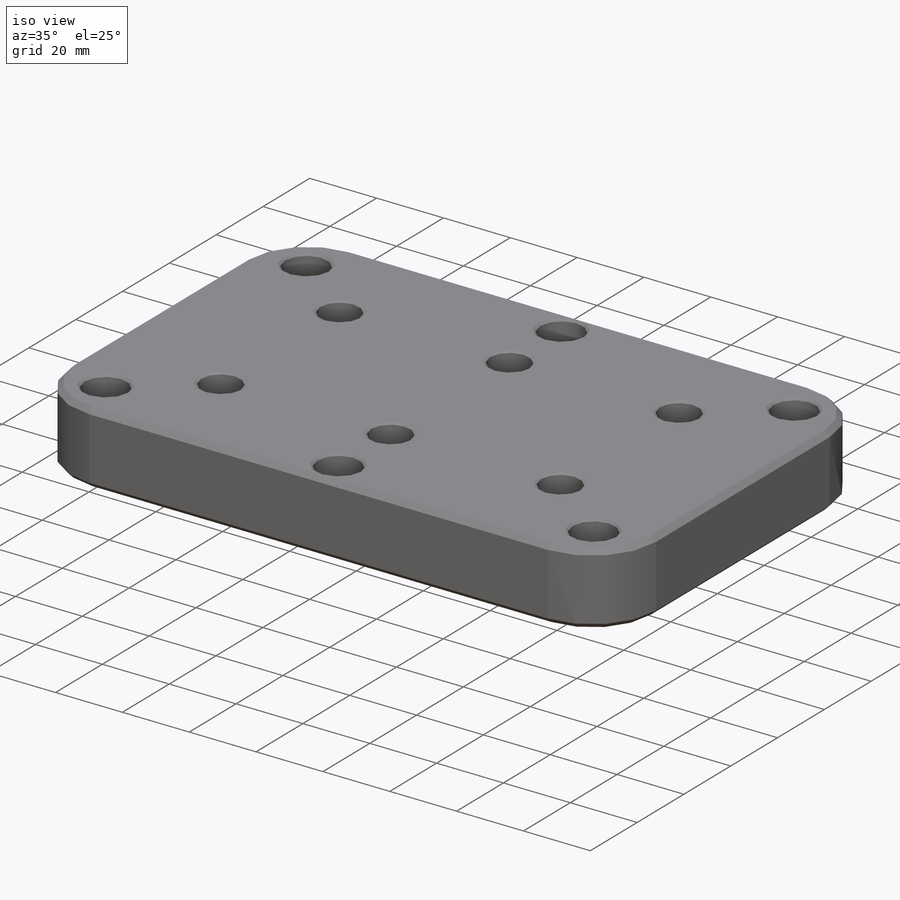
[diagram: iso view]
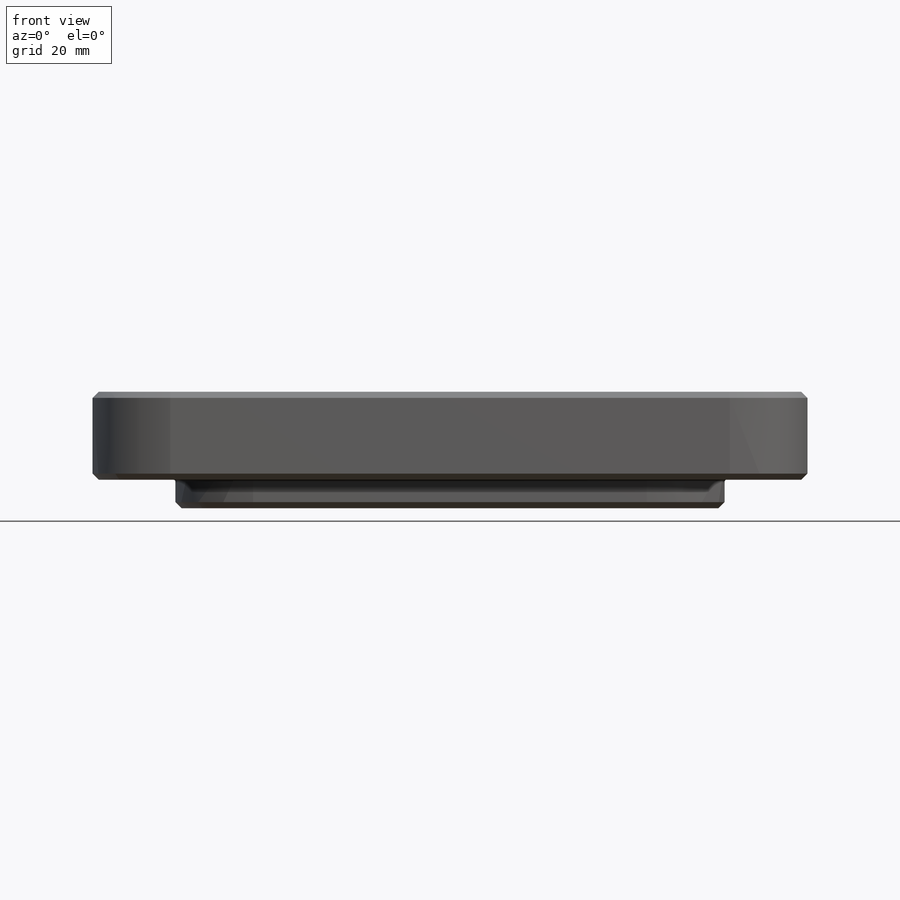
[diagram: front view]
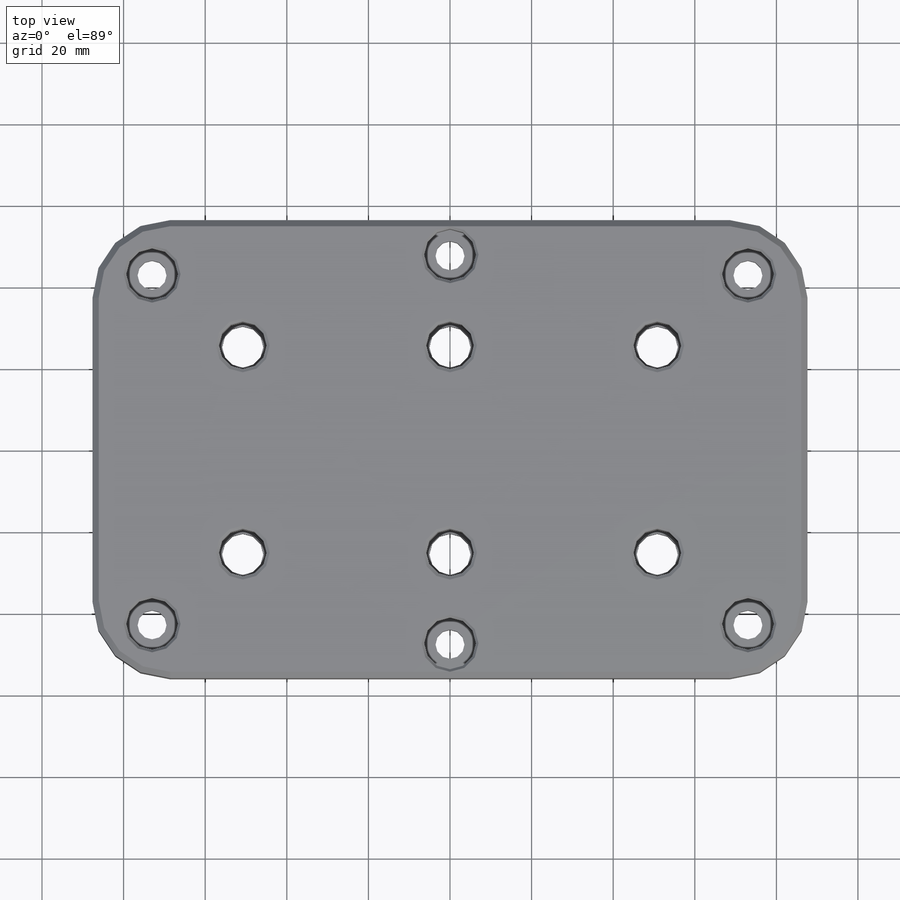
[diagram: top view]
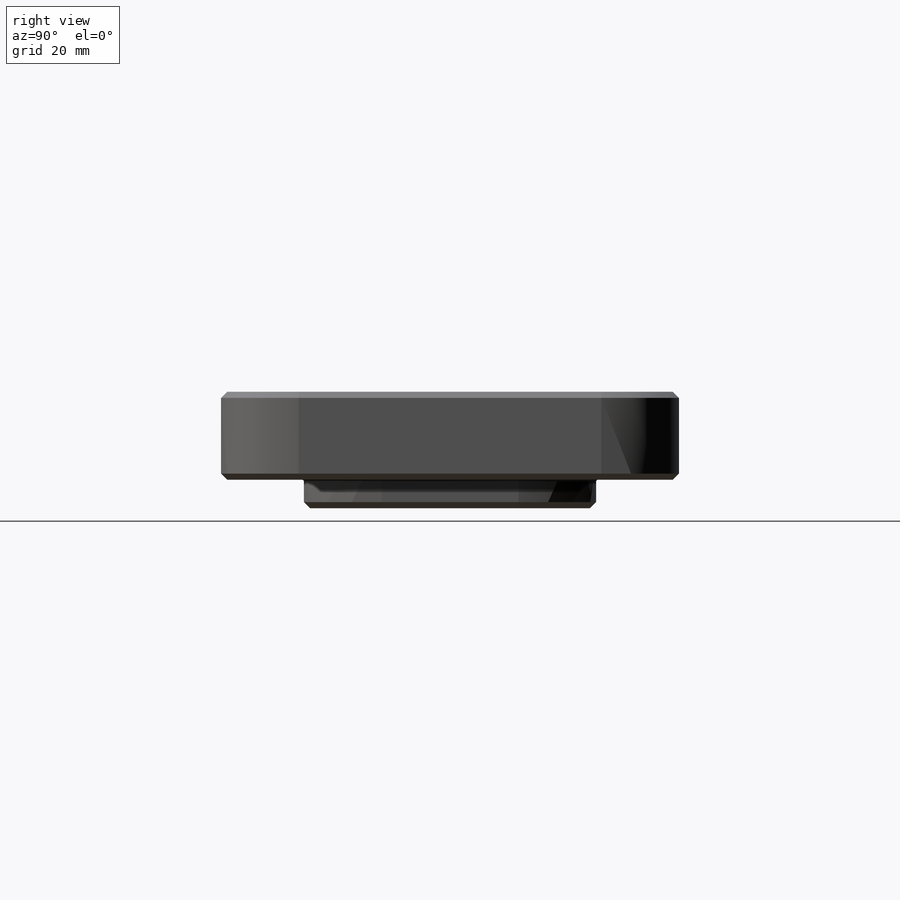
[diagram: right view]
SOLIDWORKS PART (.sldprt)
format: sldprt  version: not decoded by parser v0  size: 374,272 bytes
history: native  units: mm
features: sketch x6, extrude x2, fillet x2, hole x2, material x1, chamfer x1 + 1 further entry (+13 scaffold rows collapsed)
feature tree (28):
  scaffold x13  (default folders/planes/origin — collapsed)
  material  "6061-T6 Al"
  "Origin"  ID=-1
  sketch  "Sketch1"  dims[D1=175.26mm D2=112.268mm]
  extrude  "Extrude1"  Depth=21.59mm
  fillet  "Fillet1"  Radius=19.05mm
  hole  "CBORE for 1/4 Socket Head Cap Screw1"  Diameter=7.14248mm Depth=21.59mm
  sketch  "Sketch3"  dims[D1=95.25mm D2=85.725mm D3=146.05mm]
  sketch  "Sketch2"  dims[hole-wizard template sketch: 42 standard entries collapsed; hole parameters kept: c12.Thru Hole Depth=21.59mm c12.C'Bore Dia.=12.7mm c12.C'Bore Depth=12.7mm c12.Near C'Sink Dia.=13.97mm c12.D6=~4.399409mm c12.Near C'Sink Angle=90.0deg c12.Far C'Sink Dia.=8.128mm c12.D8=~2.963249mm c12.Far C'Sink Angle=90.0deg]
  sketch  "Sketch4"  dims[D3=19.05mm D1=134.62mm D2=71.628mm]
  extrude  "Extrude2"  Depth=6.985mm
  hole  "Tapped Hole for 3/8-16 Helicoil1"  Diameter=10.0838mm Depth=28.575mm
  sketch  "Sketch6"  dims[D1=50.8mm]
  sketch  "Sketch5"  dims[hole-wizard template sketch: 42 standard entries collapsed; hole parameters kept: c12.Thru Tap Drill Depth=28.575mm c12.Thread Major Dia.=~11.68908mm c12.Thread Depth=22.86mm c12.Near C'Sink Dia.=13.208mm c12.D6=~4.399409mm c12.Near C'Sink Angle=120.0deg]
  chamfer  "Chamfer1"  Distance=1.524mm Angle=45deg
  fillet  "Fillet2"  Radius=0.381mm
decode coverage: 13 of 13 modeling features carry decoded parameters; 1 rows unclassified (native names shown)
note: ~ marks probable driven/reference dimensions
note: suppression state not decoded; provenance and decode notes live in map.json
